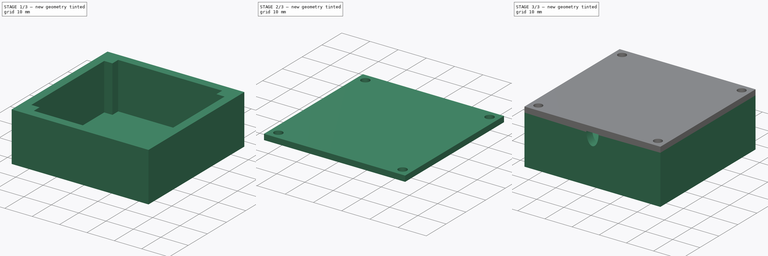
[diagram: build sequence overview — one tinted view per stage of 3, left to right]
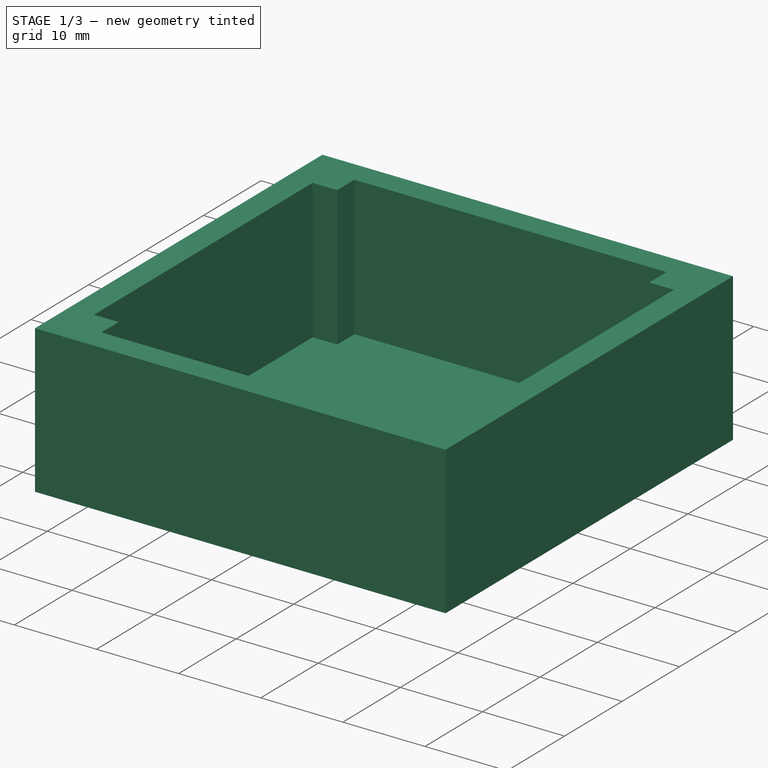
[diagram: stage 1 of 3 — iso view after this stage's code; geometry added in this stage tinted green]
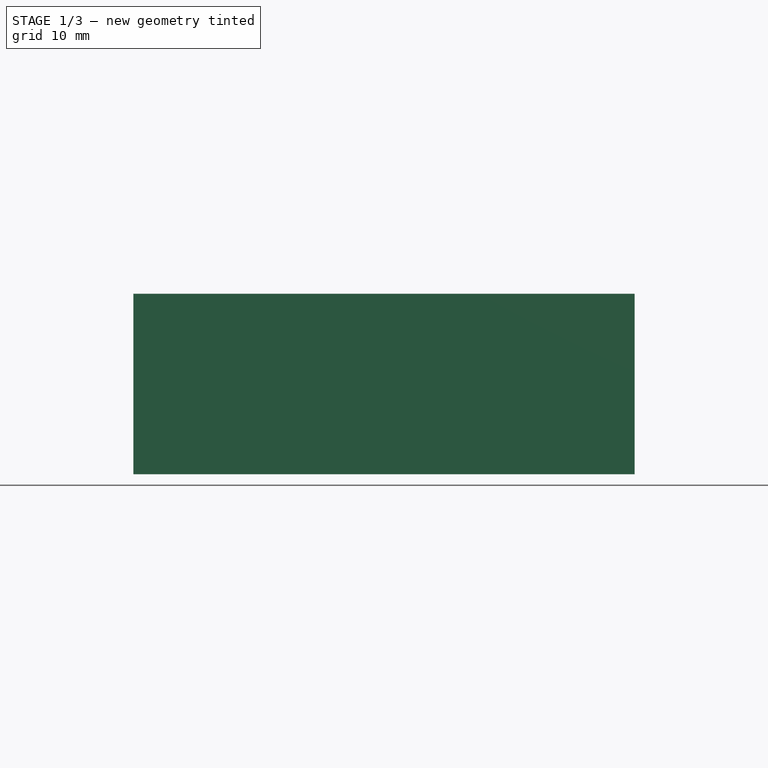
[diagram: stage 1 of 3 — front view after this stage's code; geometry added in this stage tinted green]
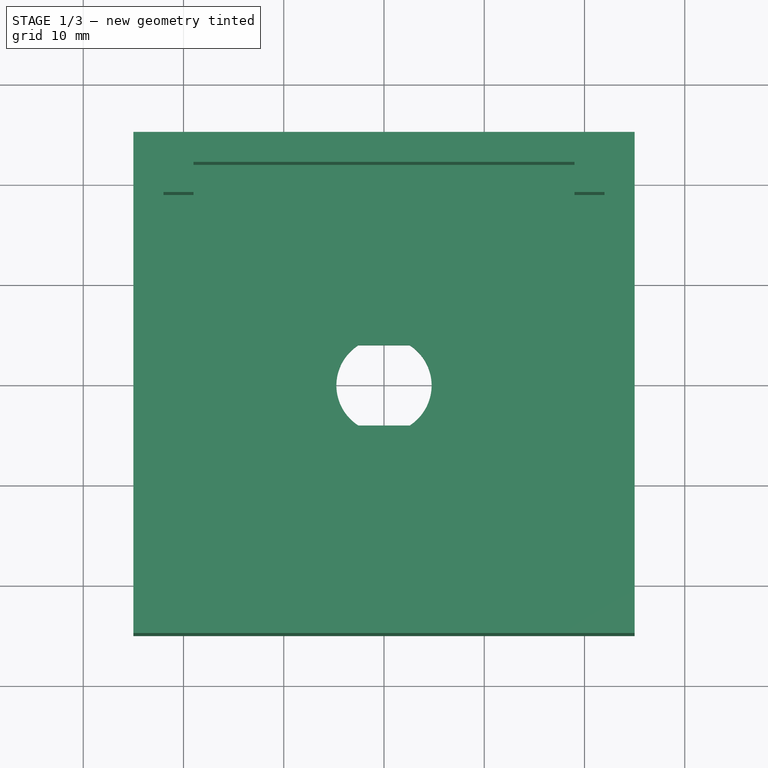
[diagram: stage 1 of 3 — top view after this stage's code; geometry added in this stage tinted green]
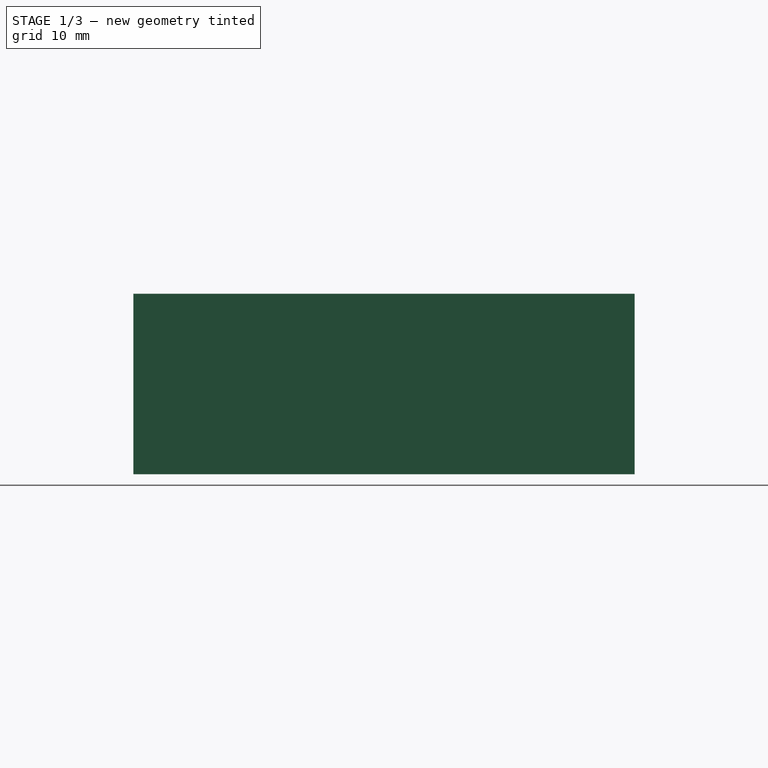
[diagram: stage 1 of 3 — right view after this stage's code; geometry added in this stage tinted green]
FCSTD DOCUMENT  (FreeCAD 0.19R19758 (Git))
Label: Encoder Box Rev C
License: All rights reserved
LicenseURL: http://en.wikipedia.org/wiki/All_rights_reserved
objects: Sketcher::SketchObject×5, PartDesign::Pad×3, PartDesign::Pocket×2, PartDesign::Body×2, PartDesign::ShapeBinder×2, TechDraw::DrawSVGTemplate×1, TechDraw::DrawViewPart×1, TechDraw::DrawPage×1
note: 19 computed .brp shape members not serialized (recipe doc carries the construction recipe); baked Part::Feature solids carry a one-line shape summary decoded from their .brp

FEATURE [Sketcher::SketchObject] Sketch  label="Box Top Profile"
  MapMode = 5
  Support = -> [XY_Plane]
  sketch-geometry (10):
    g0: LineSegment StartX=-25 StartY=25 StartZ=0 EndX=25 EndY=25 EndZ=0
    g1: LineSegment StartX=25 StartY=25 StartZ=0 EndX=25 EndY=-25 EndZ=0
    g2: LineSegment StartX=25 StartY=-25 StartZ=0 EndX=-25 EndY=-25 EndZ=0
    g3: LineSegment StartX=-25 StartY=-25 StartZ=0 EndX=-25 EndY=25 EndZ=0
    g4: ArcOfCircle CenterX=0 CenterY=0 CenterZ=0 NormalX=0 NormalY=0 NormalZ=1 AngleXU=0 Radius=4.75 StartAngle=2.14042 EndAngle=4.14277
    g5: ArcOfCircle CenterX=0 CenterY=0 CenterZ=0 NormalX=0 NormalY=0 NormalZ=1 AngleXU=0 Radius=4.75 StartAngle=5.28201 EndAngle=7.28436
    g6: LineSegment StartX=-2.56174 StartY=4 StartZ=0 EndX=2.56174 EndY=4 EndZ=0
    g7: LineSegment StartX=2.56174 StartY=-4 StartZ=0 EndX=-2.56174 EndY=-4 EndZ=0
    g8: LineSegment [constr] StartX=2.56174 StartY=4 StartZ=0 EndX=2.56174 EndY=-4 EndZ=0
    g9: LineSegment [constr] StartX=-4.75 StartY=0 StartZ=0 EndX=4.75 EndY=0 EndZ=0
  constraints (28):
    c: Coincident(g0,g1)
    c: Coincident(g1,g2)
    c: Coincident(g2,g3)
    c: Coincident(g3,g0)
    c: Horizontal(g0)
    c: Horizontal(g2)
    c: Vertical(g1)
    c: Vertical(g3)
    c: Equal(g0,g3)
    c: Coincident(g4,g-1)
    c: Coincident(g5,g4)
    c: Coincident(g6,g4)
    c: Coincident(g6,g5)
    c: Horizontal(g6)
    c: Coincident(g7,g5)
    c: Coincident(g7,g4)
    c: Horizontal(g7)
    c: Coincident(g8,g5)
    c: Coincident(g8,g5)
    c: Vertical(g8)
    c: Symmetric(g0,g1,g4)
    c: DistanceX(g0,g0) = 50
    c: DistanceY(g8,g8) = 8
    c: PointOnObject(g9,g4)
    c: PointOnObject(g9,g5)
    c: Horizontal(g9)
    c: Symmetric(g9,g9,g4)
    c: DistanceX(g9,g9) = 9.5
FEATURE [PartDesign::Pad] Pad  label="Box Top"
  Length = 1
  Length2 = 100
  Profile = -> Sketch
  Reversed = true
  Type = 0
FEATURE [TechDraw::DrawSVGTemplate] Template
  EditableTexts = Designed_by_Name=Designed by Name; Drawing_number=Drawing number; FC-Date=Date; FC-SC=Scale; FC-SH=Sheet; FC-Title=Title; Subtitle=Subtitle; Weight=Weight
  Height = 210
  Orientation = 1
  Width = 297
FEATURE [TechDraw::DrawViewPart] View
  CoarseView = false
  Direction = (0,0,1)
  Focus = 100
  HardHidden = true
  IsoCount = 0
  IsoHidden = true
  IsoVisible = true
  LockPosition = false
  Perspective = false
  Rotation = 0
  ScaleType = 0
  SeamHidden = true
  SeamVisible = true
  SmoothHidden = true
  SmoothVisible = true
  Source = -> [Sketch]
  X = 148.5
  XDirection = (1,0,0)
  Y = 105
FEATURE [TechDraw::DrawPage] Page
  KeepUpdated = true
  NextBalloonIndex = 1
  ProjectionType = 0
  Template = -> Template
  Views = -> [View]
FEATURE [Sketcher::SketchObject] Sketch001  label="Box Wall Profile"
  ExternalGeometry = -> [Sketch]
  MapMode = 5
  Support = -> [XY_Plane]
  sketch-geometry (20):
    g0: LineSegment StartX=-25 StartY=25 StartZ=0 EndX=25 EndY=25 EndZ=0
    g1: LineSegment StartX=25 StartY=25 StartZ=0 EndX=25 EndY=-25 EndZ=0
    g2: LineSegment StartX=25 StartY=-25 StartZ=0 EndX=-25 EndY=-25 EndZ=0
    g3: LineSegment StartX=-25 StartY=-25 StartZ=0 EndX=-25 EndY=25 EndZ=0
    g4: LineSegment StartX=-19 StartY=22 StartZ=0 EndX=19 EndY=22 EndZ=0
    g5: LineSegment StartX=22 StartY=19 StartZ=0 EndX=22 EndY=-19 EndZ=0
    g6: LineSegment StartX=19 StartY=-22 StartZ=0 EndX=-19 EndY=-22 EndZ=0
    g7: LineSegment StartX=-22 StartY=-19 StartZ=0 EndX=-22 EndY=19 EndZ=0
    g8: LineSegment StartX=-19 StartY=22 StartZ=0 EndX=-19 EndY=19 EndZ=0
    g9: LineSegment StartX=-22 StartY=19 StartZ=0 EndX=-19 EndY=19 EndZ=0
    g10: LineSegment [constr] StartX=-19 StartY=22 StartZ=0 EndX=-19 EndY=25 EndZ=0
    g11: LineSegment [constr] StartX=-22 StartY=19 StartZ=0 EndX=-25 EndY=19 EndZ=0
    g12: LineSegment StartX=19 StartY=22 StartZ=0 EndX=19 EndY=19 EndZ=0
    g13: LineSegment StartX=19 StartY=19 StartZ=0 EndX=22 EndY=19 EndZ=0
    g14: LineSegment StartX=22 StartY=-19 StartZ=0 EndX=19 EndY=-19 EndZ=0
    g15: LineSegment StartX=19 StartY=-19 StartZ=0 EndX=19 EndY=-22 EndZ=0
    g16: LineSegment StartX=-22 StartY=-19 StartZ=0 EndX=-19 EndY=-19 EndZ=0
    g17: LineSegment StartX=-19 StartY=-19 StartZ=0 EndX=-19 EndY=-22 EndZ=0
    g18: LineSegment [constr] StartX=22 StartY=-19 StartZ=0 EndX=25 EndY=-19 EndZ=0
    g19: LineSegment [constr] StartX=19 StartY=-22 StartZ=0 EndX=19 EndY=-25 EndZ=0
  constraints (58):
    c: Coincident(g0,g1)
    c: Coincident(g1,g2)
    c: Coincident(g2,g3)
    c: Coincident(g3,g0)
    c: Horizontal(g0)
    c: Horizontal(g2)
    c: Vertical(g1)
    c: Vertical(g3)
    c: Coincident(g0,g-3)
    c: Coincident(g1,g-4)
    c: Horizontal(g4)
    c: Horizontal(g6)
    c: Vertical(g5)
    c: Vertical(g7)
    c: Coincident(g8,g4)
    c: Vertical(g8)
    c: Coincident(g9,g8)
    c: Coincident(g9,g7)
    c: Horizontal(g9)
    c: Equal(g8,g9)
    c: PointOnObject(g10,g0)
    c: Vertical(g10)
    c: Coincident(g11,g7)
    c: PointOnObject(g11,g3)
    c: Horizontal(g11)
    c: Coincident(g4,g12)
    c: Vertical(g12)
    c: Coincident(g12,g13)
    c: Coincident(g13,g5)
    c: Horizontal(g13)
    c: Equal(g13,g12)
    c: Coincident(g10,g4)
    c: Equal(g10,g11)
    c: DistanceX(g11,g11) = 3
    c: Coincident(g5,g14)
    c: Horizontal(g14)
    c: Coincident(g14,g15)
    c: Coincident(g15,g6)
    c: Vertical(g15)
    c: Coincident(g7,g16)
    c: Horizontal(g16)
    c: Coincident(g16,g17)
    c: Coincident(g17,g6)
    c: Vertical(g17)
    c: Equal(g17,g16)
    c: Equal(g14,g15)
    c: Coincident(g18,g5)
    c: PointOnObject(g18,g1)
    c: Horizontal(g18)
    c: Coincident(g19,g6)
    c: PointOnObject(g19,g2)
    c: Vertical(g19)
    c: Equal(g18,g19)
    c: Equal(g19,g11)
    c: Equal(g14,g16)
    c: Equal(g16,g9)
    c: Equal(g9,g13)
    c: DistanceX(g11,g8) = 6
FEATURE [PartDesign::Pad] Pad001  label="Box Walls"
  BaseFeature = -> Pad
  Length = 17
  Length2 = 100
  Profile = -> Sketch001
  Type = 0
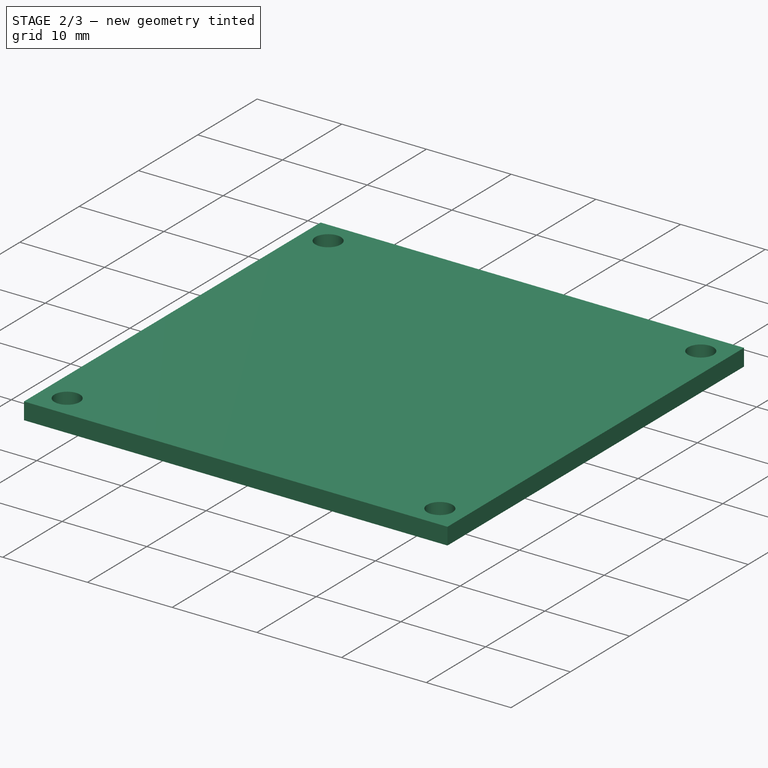
[diagram: stage 2 of 3 — iso view after this stage's code; geometry added in this stage tinted green]
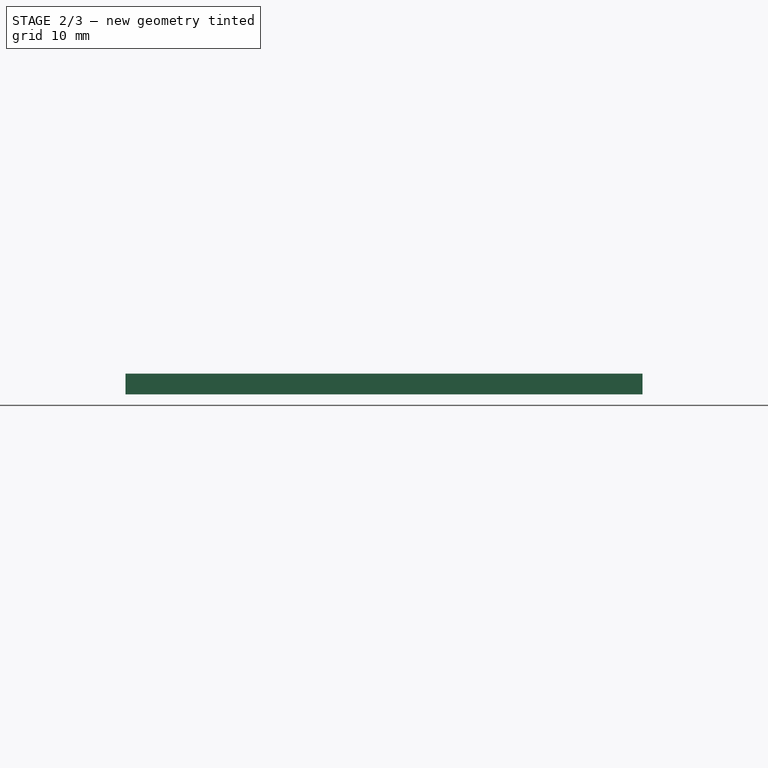
[diagram: stage 2 of 3 — front view after this stage's code; geometry added in this stage tinted green]
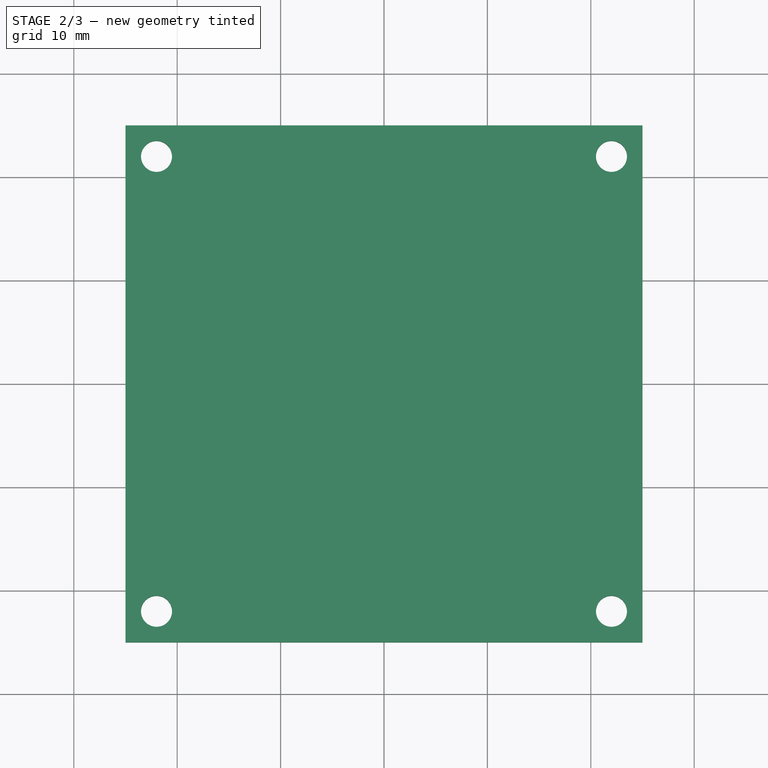
[diagram: stage 2 of 3 — top view after this stage's code; geometry added in this stage tinted green]
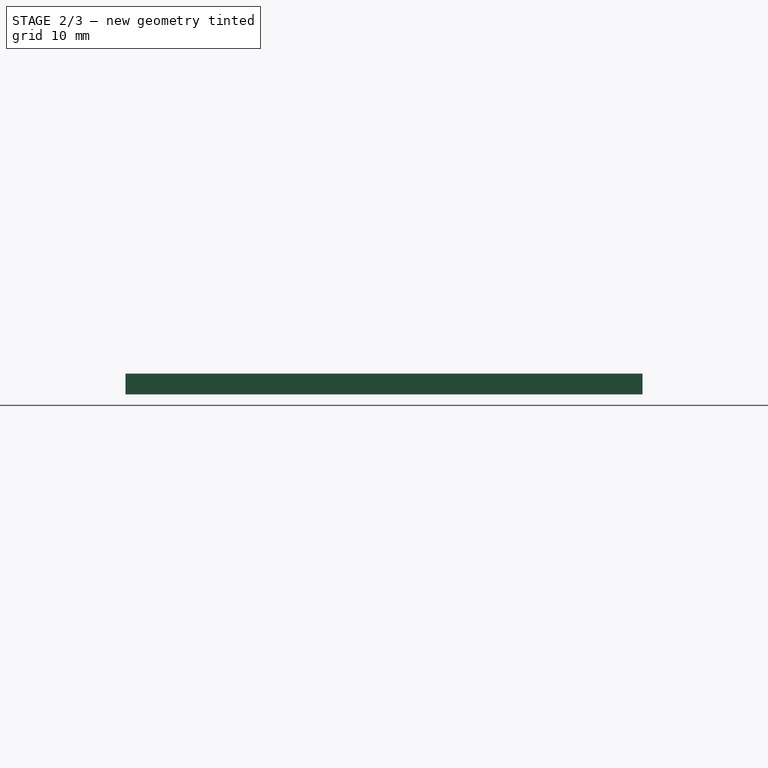
[diagram: stage 2 of 3 — right view after this stage's code; geometry added in this stage tinted green]
FEATURE [PartDesign::Body] Body  label="Main Box"
  Group = -> [Sketch,Pad,Sketch001,Pad001,Sketch002,Pocket,Sketch003,Pocket001]
  Origin = -> Origin
  Tip = -> Pocket001
FEATURE [PartDesign::ShapeBinder] ShapeBinder
  Support = -> [Sketch001]
  TraceSupport = false
FEATURE [PartDesign::ShapeBinder] ShapeBinder001
  Support = -> [Sketch002]
  TraceSupport = false
FEATURE [Sketcher::SketchObject] Sketch004  label="Box Cover Profile"
  ExternalGeometry = -> [ShapeBinder,ShapeBinder001]
  MapMode = 5
  Placement = pos=(0,0,17) rot=(0,0,1;0rad)
  sketch-geometry (8):
    g0: LineSegment StartX=-25 StartY=25 StartZ=0 EndX=25 EndY=25 EndZ=0
    g1: LineSegment StartX=25 StartY=25 StartZ=0 EndX=25 EndY=-25 EndZ=0
    g2: LineSegment StartX=25 StartY=-25 StartZ=0 EndX=-25 EndY=-25 EndZ=0
    g3: LineSegment StartX=-25 StartY=-25 StartZ=0 EndX=-25 EndY=25 EndZ=0
    g4: Circle CenterX=-22 CenterY=22 CenterZ=0 NormalX=0 NormalY=0 NormalZ=1 AngleXU=0 Radius=1.5
    g5: Circle CenterX=22 CenterY=22 CenterZ=0 NormalX=0 NormalY=0 NormalZ=1 AngleXU=0 Radius=1.5
    g6: Circle CenterX=22 CenterY=-22 CenterZ=0 NormalX=0 NormalY=0 NormalZ=1 AngleXU=0 Radius=1.5
    g7: Circle CenterX=-22 CenterY=-22 CenterZ=0 NormalX=0 NormalY=0 NormalZ=1 AngleXU=0 Radius=1.5
  constraints (18):
    c: Coincident(g0,g1)
    c: Coincident(g1,g2)
    c: Coincident(g2,g3)
    c: Coincident(g3,g0)
    c: Horizontal(g0)
    c: Horizontal(g2)
    c: Vertical(g1)
    c: Vertical(g3)
    c: Coincident(g0,g-3)
    c: Coincident(g1,g-4)
    c: Coincident(g4,g-5)
    c: Coincident(g5,g-6)
    c: Coincident(g6,g-7)
    c: Coincident(g7,g-8)
    c: Equal(g4,g5)
    c: Equal(g5,g6)
    c: Equal(g6,g7)
    c: Diameter(g4) = 3
FEATURE [PartDesign::Pad] Pad002  label="Box Cover"
  Length = 2
  Length2 = 100
  Placement = pos=(0,0,17) rot=(0,0,1;0rad)
  Profile = -> Sketch004
  Type = 0
FEATURE [PartDesign::Body] Body001  label="Cover"
  Group = -> [Sketch004,ShapeBinder,ShapeBinder001,Pad002]
  Origin = -> Origin001
  Tip = -> Pad002
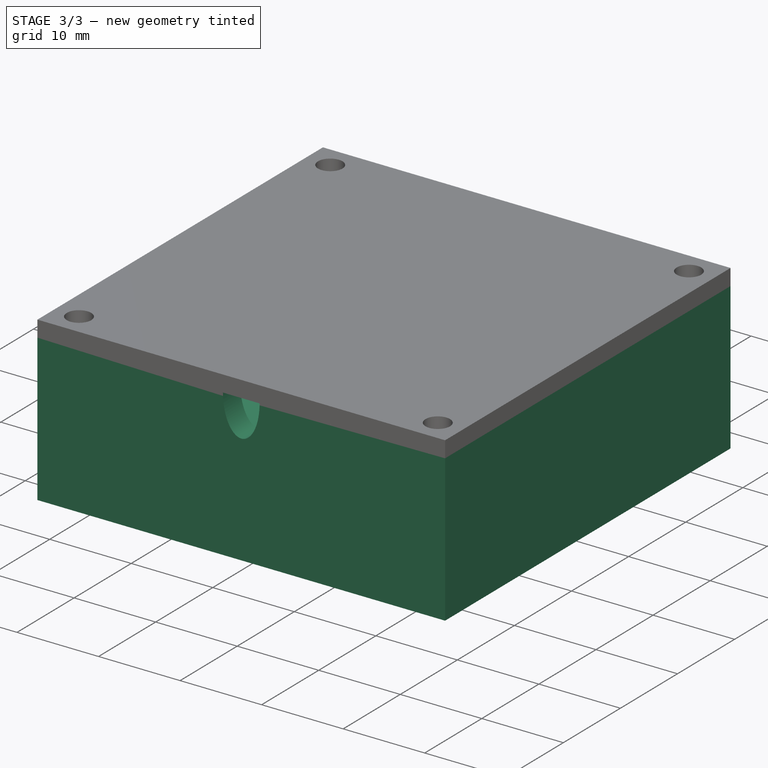
[diagram: stage 3 of 3 — iso view after this stage's code; geometry added in this stage tinted green]
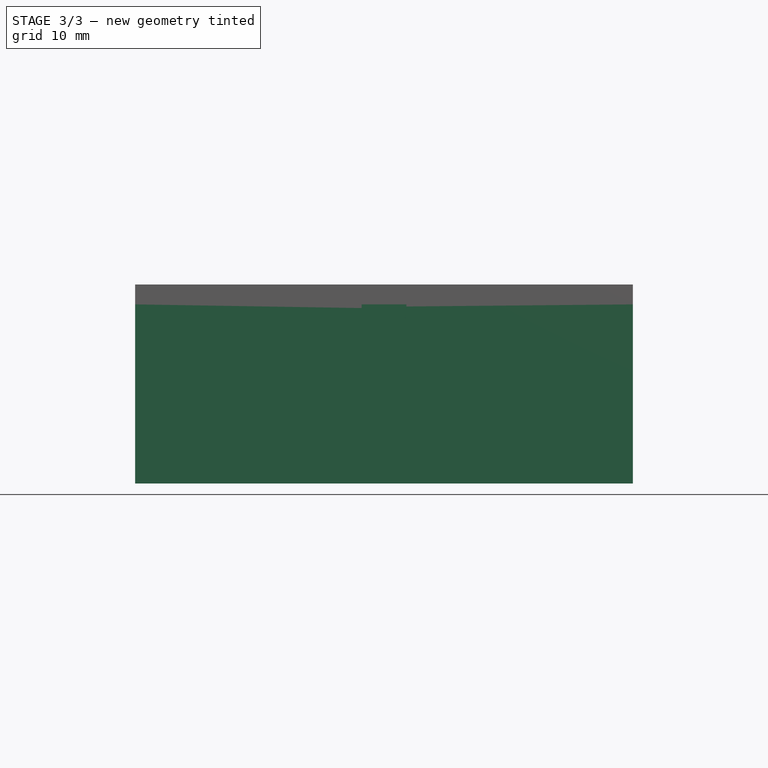
[diagram: stage 3 of 3 — front view after this stage's code; geometry added in this stage tinted green]
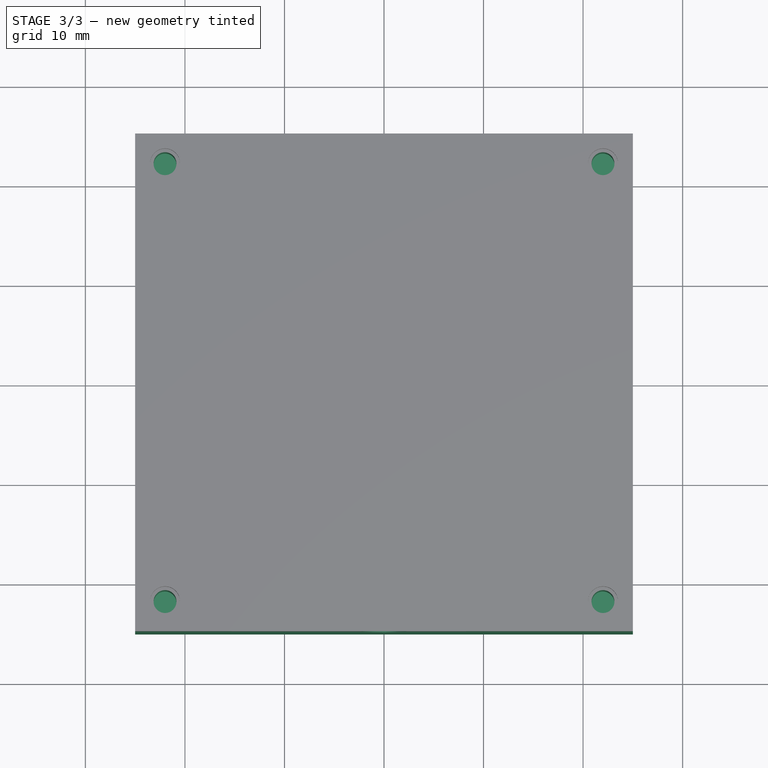
[diagram: stage 3 of 3 — top view after this stage's code; geometry added in this stage tinted green]
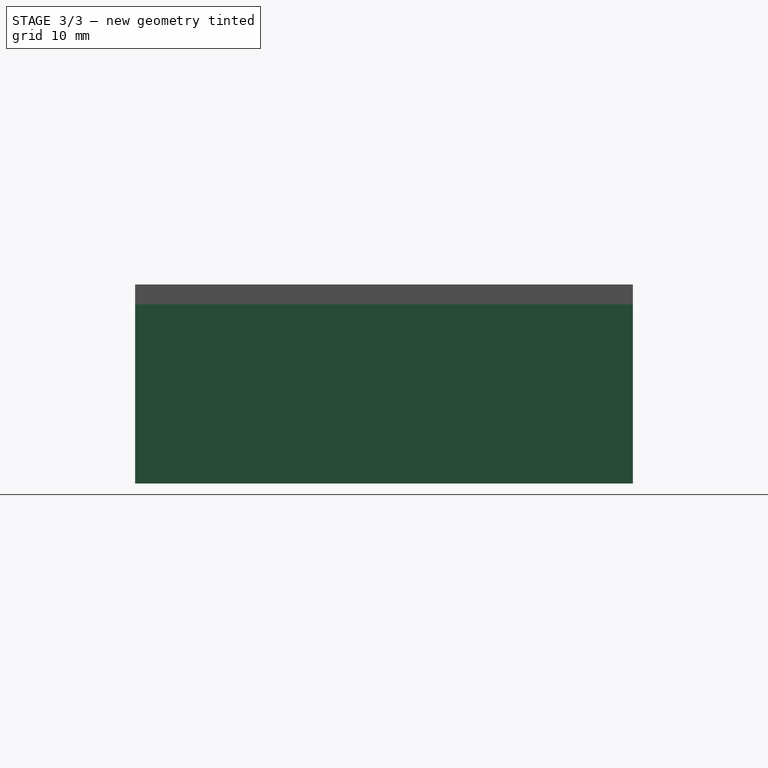
[diagram: stage 3 of 3 — right view after this stage's code; geometry added in this stage tinted green]
FEATURE [Sketcher::SketchObject] Sketch002  label="Box Screw Hole Profile"
  ExternalGeometry = -> [Sketch001]
  MapMode = 5
  Placement = pos=(0,0,17) rot=(0,0,1;0rad)
  Support = -> [Pad001]
  sketch-geometry (4):
    g0: Circle CenterX=-22 CenterY=22 CenterZ=0 NormalX=0 NormalY=0 NormalZ=1 AngleXU=0 Radius=1.15
    g1: Circle CenterX=22 CenterY=22 CenterZ=0 NormalX=0 NormalY=0 NormalZ=1 AngleXU=0 Radius=1.15
    g2: Circle CenterX=-22 CenterY=-22 CenterZ=0 NormalX=0 NormalY=0 NormalZ=1 AngleXU=0 Radius=1.15
    g3: Circle CenterX=22 CenterY=-22 CenterZ=0 NormalX=0 NormalY=0 NormalZ=1 AngleXU=0 Radius=1.15
  constraints (8):
    c: Symmetric(g-3,g-4,g0)
    c: Symmetric(g-5,g-6,g1)
    c: Symmetric(g-7,g-8,g3)
    c: Symmetric(g-9,g-10,g2)
    c: Equal(g0,g1)
    c: Equal(g1,g2)
    c: Equal(g2,g3)
    c: Diameter(g0) = 2.3
FEATURE [PartDesign::Pocket] Pocket  label="Box Screw Holes"
  BaseFeature = -> Pad001
  Length = 8
  Length2 = 100
  Profile = -> Sketch002
  Type = 0
FEATURE [Sketcher::SketchObject] Sketch003  label="Cable Hole Profile"
  ExternalGeometry = -> [Pocket]
  MapMode = 5
  Placement = pos=(0,-25,0) rot=(1,0,0;1.5708rad)
  Support = -> [Pocket]
  sketch-geometry (6):
    g0: ArcOfEllipse CenterX=0 CenterY=17 CenterZ=0 NormalX=0 NormalY=0 NormalZ=1 MajorRadius=4.5 MinorRadius=2.25 AngleXU=-1.5708 StartAngle=4.71239 EndAngle=7.85398
    g1: LineSegment [constr] StartX=0 StartY=12.5 StartZ=0 EndX=0 EndY=21.5 EndZ=0
    g2: LineSegment [constr] StartX=2.25 StartY=17 StartZ=0 EndX=-2.25 EndY=17 EndZ=0
    g3: GeomPoint X=0 Y=13.1029 Z=0
    g4: GeomPoint X=0 Y=20.8971 Z=0
    g5: LineSegment StartX=-2.25 StartY=17 StartZ=0 EndX=2.25 EndY=17 EndZ=0
  constraints (10):
    c: InternalAlignment(g1-g4 -> g0) x4
    c: PointOnObject(g0,g-2)
    c: PointOnObject(g0,g-3)
    c: PointOnObject(g0,g-3)
    c: DistanceX(g2,g2) = 4.5
    c: PointOnObject(g3,g-2)
    c: PointOnObject(g2,g-3)
    c: DistanceY(g1,g0) = 4.5
    c: Coincident(g5,g0)
    c: Coincident(g5,g0)
FEATURE [PartDesign::Pocket] Pocket001  label="Cable Hole"
  BaseFeature = -> Pocket
  Length = 5
  Length2 = 100
  Profile = -> Sketch003
  Type = 2
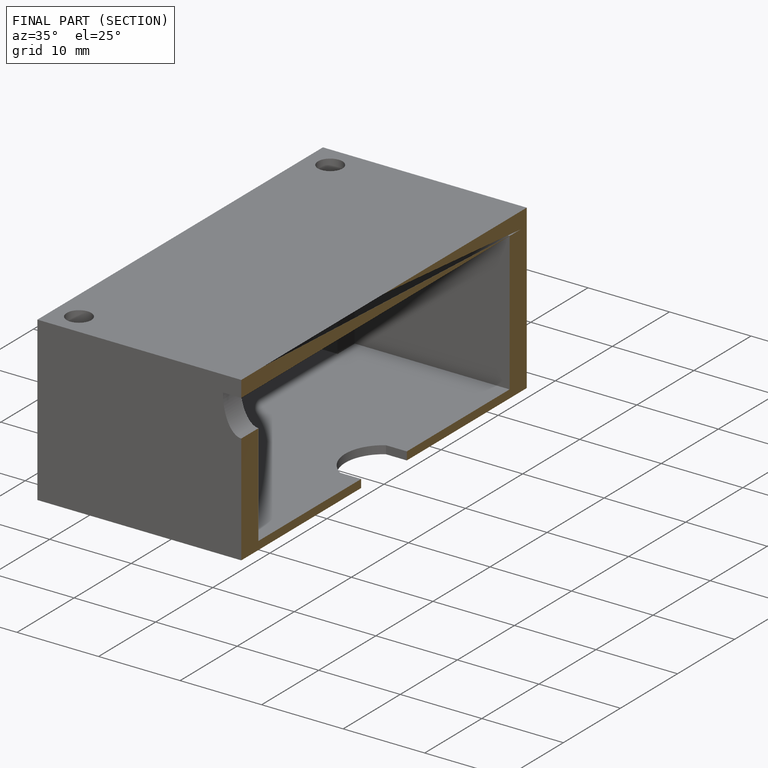
[diagram: finished part — half-section view (interior)]
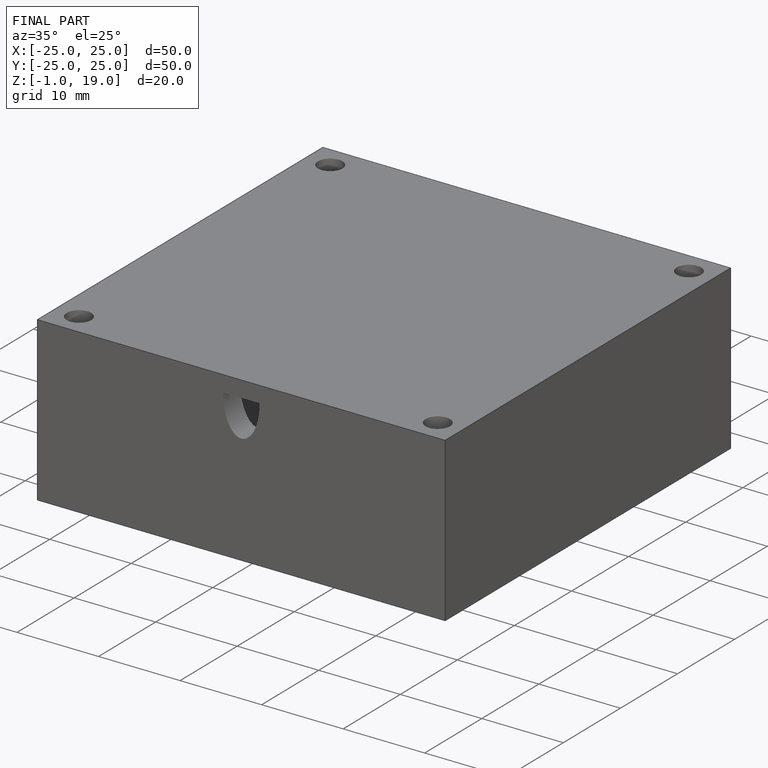
[diagram: finished part — iso view with bounding-box wireframe]
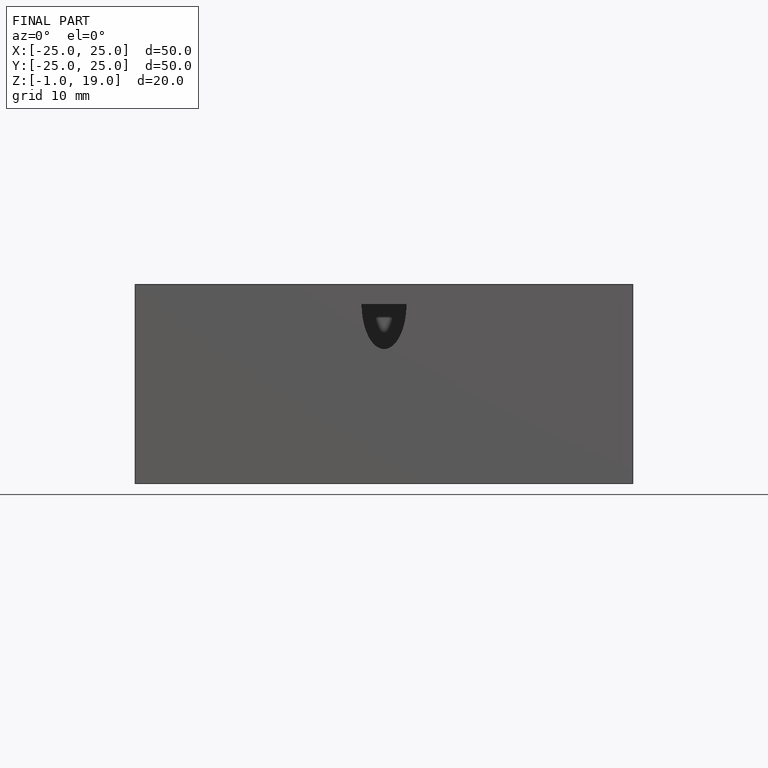
[diagram: finished part — front view with bounding-box wireframe]
